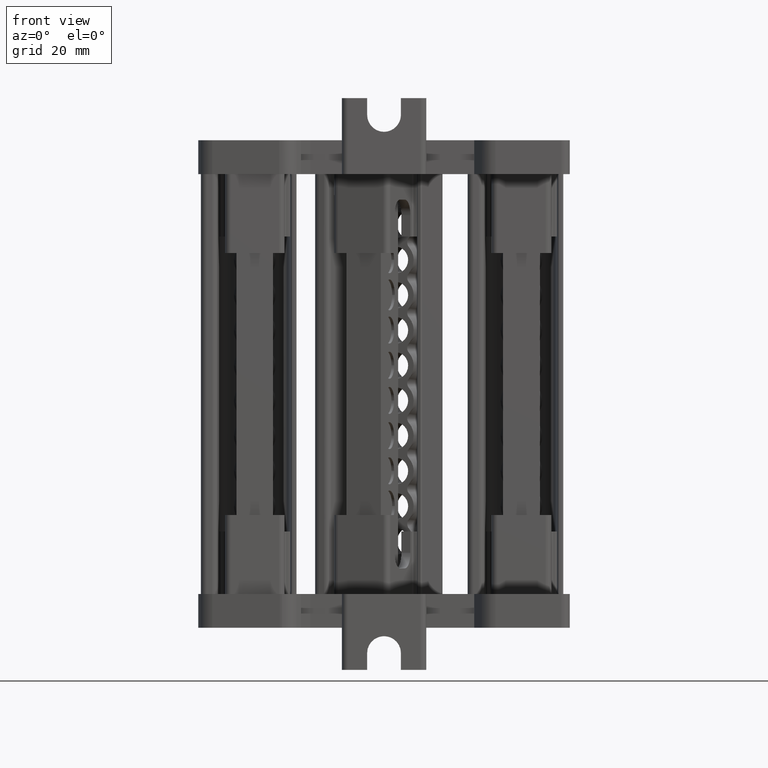
[diagram: clean part render]
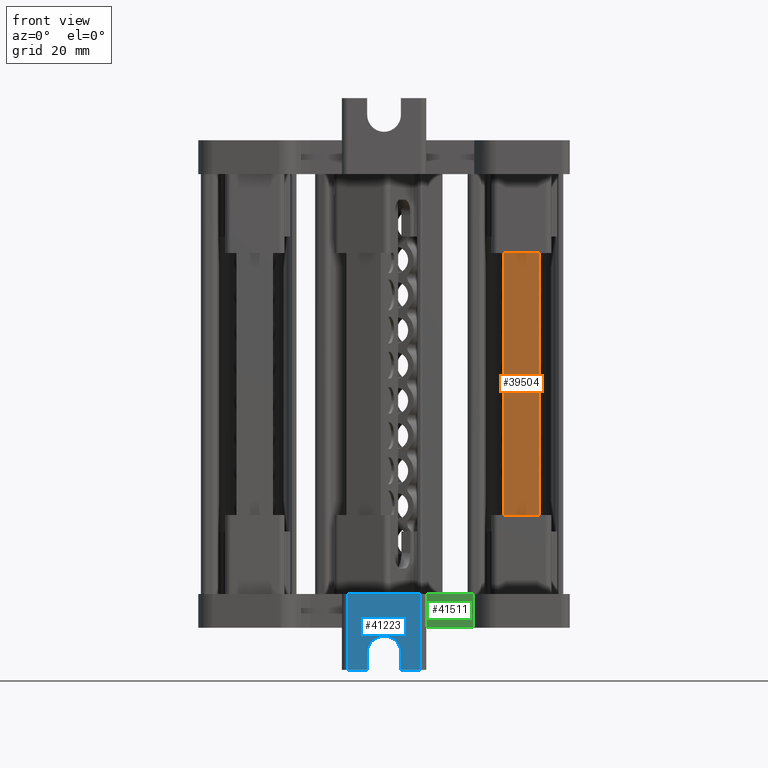
[diagram: same view with three faces highlighted in distinct colors, each labeled with its STEP entity id]
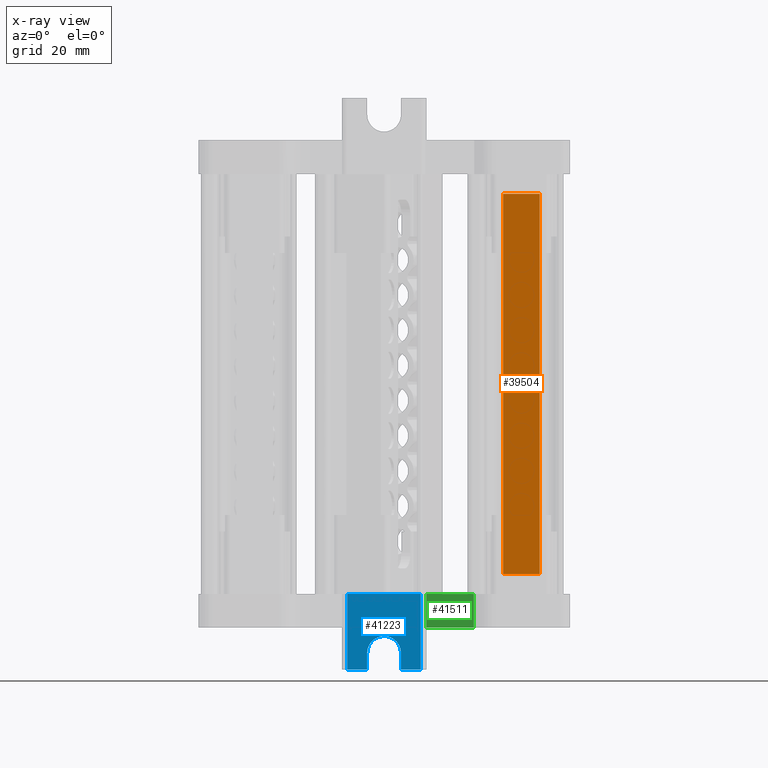
[diagram: x-ray of the same camera — body ghosted, the three highlighted faces saturated]
A machine part, front view with three faces highlighted in distinct colors.
The next image is the same camera in x-ray (body ghosted, the three faces saturated) — at least one of them is partly hidden behind the body in this view.
Their STEP definitions:

[orange] entity #39504 — the highlighted planar face has unit normal (0, 1, -0).
#4358 = PLANE ( 'NONE',  #5455 ) ;
#4363 = DIRECTION ( 'NONE',  ( -1.000000000000000000, 1.197504000946732500E-013, 0.0000000000000000000 ) ) ;
#4380 = DIRECTION ( 'NONE',  ( 1.197504000946732500E-013, 1.000000000000000000, -8.182587763210039800E-015 ) ) ;
#4383 = CARTESIAN_POINT ( 'NONE',  ( -276.7292477642366700, 208.4865885416695300, 29.24122990646404600 ) ) ;
#4399 = FACE_OUTER_BOUND ( 'NONE', #50822, .T. ) ;
#5455 = AXIS2_PLACEMENT_3D ( 'NONE', #4383, #4380, #4363 ) ;
#16775 = VERTEX_POINT ( 'NONE', #79411 ) ;
#16813 = VERTEX_POINT ( 'NONE', #79505 ) ;
#17326 = VERTEX_POINT ( 'NONE', #79720 ) ;
#17745 = VERTEX_POINT ( 'NONE', #79820 ) ;
#24283 = EDGE_CURVE ( 'NONE', #17326, #17745, #98885, .T. ) ;
#29691 = VECTOR ( 'NONE', #41949, 1000.000000000000000 ) ;
#29785 = VECTOR ( 'NONE', #42471, 1000.000000000000000 ) ;
#29800 = VECTOR ( 'NONE', #42134, 1000.000000000000000 ) ;
#39504 = ADVANCED_FACE ( 'NONE', ( #4399 ), #4358, .F. ) ;
#41590 = EDGE_CURVE ( 'NONE', #17326, #16813, #42013, .T. ) ;
#41602 = EDGE_CURVE ( 'NONE', #17745, #16775, #42125, .T. ) ;
#41646 = EDGE_CURVE ( 'NONE', #16775, #16813, #42506, .T. ) ;
#41949 = DIRECTION ( 'NONE',  ( -1.259341268657547500E-016, 1.508066207774747300E-029, -1.000000000000000000 ) ) ;
#41967 = CARTESIAN_POINT ( 'NONE',  ( -276.7292477642366200, 208.4865885416701000, 29.24122990646399600 ) ) ;
#42013 = LINE ( 'NONE', #41967, #29691 ) ;
#42125 = LINE ( 'NONE', #42127, #29800 ) ;
#42127 = CARTESIAN_POINT ( 'NONE',  ( -270.2292477642366700, 208.4865885416693300, 29.24122990646399600 ) ) ;
#42134 = DIRECTION ( 'NONE',  ( -1.259341268657547500E-016, 1.508066207774747300E-029, -1.000000000000000000 ) ) ;
#42471 = DIRECTION ( 'NONE',  ( -1.000000000000000000, 2.763709470186517000E-032, 3.469446951942104800E-018 ) ) ;
#42506 = LINE ( 'NONE', #42529, #29785 ) ;
#42529 = CARTESIAN_POINT ( 'NONE',  ( -270.4169902369251300, 208.4865885416687700, 29.24122990646639100 ) ) ;
#49115 = ORIENTED_EDGE ( 'NONE', *, *, #41646, .F. ) ;
#50822 = EDGE_LOOP ( 'NONE', ( #51359, #49115, #51394, #51443 ) ) ;
#51359 = ORIENTED_EDGE ( 'NONE', *, *, #41590, .T. ) ;
#51394 = ORIENTED_EDGE ( 'NONE', *, *, #41602, .F. ) ;
#51443 = ORIENTED_EDGE ( 'NONE', *, *, #24283, .F. ) ;
#73303 = VECTOR ( 'NONE', #98942, 1000.000000000000000 ) ;
#79411 = CARTESIAN_POINT ( 'NONE',  ( -270.2292477642359900, 208.4865885416689900, 29.24122990646639100 ) ) ;
#79505 = CARTESIAN_POINT ( 'NONE',  ( -276.7292477642366200, 208.4865885416692200, 29.24122990646639100 ) ) ;
#79720 = CARTESIAN_POINT ( 'NONE',  ( -276.7292477642366200, 208.4865885416701000, 96.78362721523151900 ) ) ;
#79820 = CARTESIAN_POINT ( 'NONE',  ( -270.2292477642366700, 208.4865885416693300, 96.78362721523151900 ) ) ;
#98885 = LINE ( 'NONE', #98910, #73303 ) ;
#98910 = CARTESIAN_POINT ( 'NONE',  ( -276.7292477642366700, 208.4865885416701000, 96.78362721523146200 ) ) ;
#98942 = DIRECTION ( 'NONE',  ( 1.000000000000000000, -1.197504000946732500E-013, -0.0000000000000000000 ) ) ;

[blue] entity #41223 — the highlighted planar face has unit normal (0, -1, -0).
#4898 = VECTOR ( 'NONE', #12810, 1000.000000000000000 ) ;
#4925 = VECTOR ( 'NONE', #13182, 1000.000000000000000 ) ;
#8344 = EDGE_LOOP ( 'NONE', ( #96451, #47595, #96458, #96431, #47252, #96428, #96418, #96454 ) ) ;
#12799 = LINE ( 'NONE', #12844, #4898 ) ;
#12810 = DIRECTION ( 'NONE',  ( -0.0000000000000000000, -6.891400851611630800E-015, 1.000000000000000000 ) ) ;
#12844 = CARTESIAN_POINT ( 'NONE',  ( -300.8933535342819700, 187.0684934825438900, -61.31907355829680000 ) ) ;
#13073 = CARTESIAN_POINT ( 'NONE',  ( -294.8928489085786900, 187.0684934825438900, -61.31907355829680000 ) ) ;
#13167 = LINE ( 'NONE', #13073, #4925 ) ;
#13182 = DIRECTION ( 'NONE',  ( 0.0000000000000000000, 6.891400851611630800E-015, -1.000000000000000000 ) ) ;
#13839 = VECTOR ( 'NONE', #16557, 1000.000000000000000 ) ;
#13979 = VECTOR ( 'NONE', #16761, 1000.000000000000000 ) ;
#14065 = VECTOR ( 'NONE', #16886, 1000.000000000000000 ) ;
#14146 = VECTOR ( 'NONE', #16869, 1000.000000000000000 ) ;
#14164 = VECTOR ( 'NONE', #16898, 1000.000000000000000 ) ;
#16557 = DIRECTION ( 'NONE',  ( -1.000000000000000000, 0.0000000000000000000, -0.0000000000000000000 ) ) ;
#16621 = CARTESIAN_POINT ( 'NONE',  ( -300.8933535342819700, 187.0684934825434000, 12.21179777871980800 ) ) ;
#16635 = LINE ( 'NONE', #16621, #13839 ) ;
#16757 = CARTESIAN_POINT ( 'NONE',  ( -304.3898549441998400, 187.0684934825439100, -61.31907355829680700 ) ) ;
#16761 = DIRECTION ( 'NONE',  ( -3.956299522033005100E-015, -6.891400851611630800E-015, 1.000000000000000000 ) ) ;
#16840 = LINE ( 'NONE', #16757, #13979 ) ;
#16846 = LINE ( 'NONE', #16888, #14146 ) ;
#16855 = CARTESIAN_POINT ( 'NONE',  ( -291.3963463213656800, 187.0684934825432900, 25.71293318655206100 ) ) ;
#16867 = LINE ( 'NONE', #16855, #14164 ) ;
#16869 = DIRECTION ( 'NONE',  ( 3.956299522033005100E-015, 6.891400851611630800E-015, -1.000000000000000000 ) ) ;
#16884 = LINE ( 'NONE', #16893, #14065 ) ;
#16886 = DIRECTION ( 'NONE',  ( -1.000000000000000000, 0.0000000000000000000, -0.0000000000000000000 ) ) ;
#16888 = CARTESIAN_POINT ( 'NONE',  ( -291.3963463213653400, 187.0684934825439100, -61.31907355829680700 ) ) ;
#16893 = CARTESIAN_POINT ( 'NONE',  ( -290.3962622170823200, 187.0684934825434000, 12.21179777871980800 ) ) ;
#16898 = DIRECTION ( 'NONE',  ( -1.000000000000000000, -2.944406934524380500E-029, -2.029108845607250600E-043 ) ) ;
#24517 = EDGE_CURVE ( 'NONE', #64437, #64448, #73681, .T. ) ;
#30394 = AXIS2_PLACEMENT_3D ( 'NONE', #33925, #33896, #33886 ) ;
#33834 = PLANE ( 'NONE',  #30394 ) ;
#33849 = FACE_OUTER_BOUND ( 'NONE', #8344, .T. ) ;
#33886 = DIRECTION ( 'NONE',  ( 0.0000000000000000000, 6.891400851611630800E-015, -1.000000000000000000 ) ) ;
#33896 = DIRECTION ( 'NONE',  ( 2.944406934524380500E-029, -1.000000000000000000, -6.891400851611630800E-015 ) ) ;
#33925 = CARTESIAN_POINT ( 'NONE',  ( -291.3963463213656800, 187.0684934825438900, -61.31907355829680000 ) ) ;
#40268 = EDGE_CURVE ( 'NONE', #64674, #64437, #12799, .T. ) ;
#40286 = EDGE_CURVE ( 'NONE', #64448, #64679, #13167, .T. ) ;
#40437 = EDGE_CURVE ( 'NONE', #64674, #64859, #16635, .T. ) ;
#40474 = EDGE_CURVE ( 'NONE', #64859, #64799, #16840, .T. ) ;
#40482 = EDGE_CURVE ( 'NONE', #64791, #64679, #16884, .T. ) ;
#40483 = EDGE_CURVE ( 'NONE', #64760, #64799, #16867, .T. ) ;
#40487 = EDGE_CURVE ( 'NONE', #64760, #64791, #16846, .T. ) ;
#41223 = ADVANCED_FACE ( 'NONE', ( #33849 ), #33834, .T. ) ;
#47252 = ORIENTED_EDGE ( 'NONE', *, *, #40487, .F. ) ;
#47595 = ORIENTED_EDGE ( 'NONE', *, *, #24517, .T. ) ;
#64437 = VERTEX_POINT ( 'NONE', #110407 ) ;
#64448 = VERTEX_POINT ( 'NONE', #110394 ) ;
#64674 = VERTEX_POINT ( 'NONE', #110592 ) ;
#64679 = VERTEX_POINT ( 'NONE', #110585 ) ;
#64760 = VERTEX_POINT ( 'NONE', #110629 ) ;
#64791 = VERTEX_POINT ( 'NONE', #110627 ) ;
#64799 = VERTEX_POINT ( 'NONE', #110675 ) ;
#64859 = VERTEX_POINT ( 'NONE', #110659 ) ;
#73651 = AXIS2_PLACEMENT_3D ( 'NONE', #100955, #100986, #100974 ) ;
#73681 = CIRCLE ( 'NONE', #73651, 3.000252312851639000 ) ;
#96418 = ORIENTED_EDGE ( 'NONE', *, *, #40474, .F. ) ;
#96428 = ORIENTED_EDGE ( 'NONE', *, *, #40483, .T. ) ;
#96431 = ORIENTED_EDGE ( 'NONE', *, *, #40482, .F. ) ;
#96451 = ORIENTED_EDGE ( 'NONE', *, *, #40268, .T. ) ;
#96454 = ORIENTED_EDGE ( 'NONE', *, *, #40437, .F. ) ;
#96458 = ORIENTED_EDGE ( 'NONE', *, *, #40286, .T. ) ;
#100955 = CARTESIAN_POINT ( 'NONE',  ( -297.8931012214303600, 187.0684934825434000, 15.21205009157163200 ) ) ;
#100974 = DIRECTION ( 'NONE',  ( 0.0000000000000000000, 9.251080483043832000E-015, -1.000000000000000000 ) ) ;
#100986 = DIRECTION ( 'NONE',  ( -2.944406934524380500E-029, 1.000000000000000000, 6.891400851611630800E-015 ) ) ;
#110394 = CARTESIAN_POINT ( 'NONE',  ( -294.8928489085786900, 187.0684934825434000, 15.21205009157154600 ) ) ;
#110407 = CARTESIAN_POINT ( 'NONE',  ( -300.8933535342819700, 187.0684934825434000, 15.21205009157164400 ) ) ;
#110585 = CARTESIAN_POINT ( 'NONE',  ( -294.8928489085786900, 187.0684934825434000, 12.21179777871981600 ) ) ;
#110592 = CARTESIAN_POINT ( 'NONE',  ( -300.8933535342819700, 187.0684934825434000, 12.21179777871981600 ) ) ;
#110627 = CARTESIAN_POINT ( 'NONE',  ( -291.3963463213658000, 187.0684934825434000, 12.21179777871983200 ) ) ;
#110629 = CARTESIAN_POINT ( 'NONE',  ( -291.3963463213658500, 187.0684934825432900, 25.71293318655206800 ) ) ;
#110659 = CARTESIAN_POINT ( 'NONE',  ( -304.3898549442001200, 187.0684934825434000, 12.21179777871982000 ) ) ;
#110675 = CARTESIAN_POINT ( 'NONE',  ( -304.3898549442001800, 187.0684934825432900, 25.71293318655203900 ) ) ;

[green] entity #41511 — the highlighted planar face has unit normal (0, -1, -0).
#9791 = EDGE_LOOP ( 'NONE', ( #46250, #46103, #46234, #46198 ) ) ;
#12427 = VECTOR ( 'NONE', #20025, 1000.000000000000000 ) ;
#12648 = VECTOR ( 'NONE', #21164, 1000.000000000000000 ) ;
#12735 = VECTOR ( 'NONE', #22106, 1000.000000000000000 ) ;
#12832 = VECTOR ( 'NONE', #22504, 1000.000000000000000 ) ;
#20025 = DIRECTION ( 'NONE',  ( -0.0000000000000000000, -6.891400851611630800E-015, 1.000000000000000000 ) ) ;
#20037 = LINE ( 'NONE', #20066, #12427 ) ;
#20066 = CARTESIAN_POINT ( 'NONE',  ( -281.9340844285987400, 192.1430531581711400, -61.31907355829680000 ) ) ;
#21012 = LINE ( 'NONE', #21096, #12648 ) ;
#21096 = CARTESIAN_POINT ( 'NONE',  ( -281.9340844285987400, 192.1430531581705500, 25.71293318655212800 ) ) ;
#21164 = DIRECTION ( 'NONE',  ( -1.000000000000000000, -2.257871461625990100E-029, -1.555989731347894500E-043 ) ) ;
#22104 = CARTESIAN_POINT ( 'NONE',  ( -290.3962622170823200, 192.1430531581711400, -61.31907355829680000 ) ) ;
#22106 = DIRECTION ( 'NONE',  ( 0.0000000000000000000, 6.891400851611630800E-015, -1.000000000000000000 ) ) ;
#22112 = LINE ( 'NONE', #22104, #12735 ) ;
#22494 = CARTESIAN_POINT ( 'NONE',  ( -281.9340844285987400, 192.1430531581706000, 19.71242856084912300 ) ) ;
#22499 = LINE ( 'NONE', #22494, #12832 ) ;
#22504 = DIRECTION ( 'NONE',  ( 1.000000000000000000, 2.257871461625990100E-029, 1.555989731347894500E-043 ) ) ;
#29481 = AXIS2_PLACEMENT_3D ( 'NONE', #35983, #35910, #35913 ) ;
#35910 = DIRECTION ( 'NONE',  ( 2.257871461625990100E-029, -1.000000000000000000, -6.891400851611630800E-015 ) ) ;
#35913 = DIRECTION ( 'NONE',  ( 0.0000000000000000000, 6.891400851611630800E-015, -1.000000000000000000 ) ) ;
#35940 = FACE_OUTER_BOUND ( 'NONE', #9791, .T. ) ;
#35982 = PLANE ( 'NONE',  #29481 ) ;
#35983 = CARTESIAN_POINT ( 'NONE',  ( -281.9340844285987400, 192.1430531581711400, -61.31907355829680000 ) ) ;
#40749 = EDGE_CURVE ( 'NONE', #66569, #66579, #20037, .T. ) ;
#40826 = EDGE_CURVE ( 'NONE', #66579, #66566, #21012, .T. ) ;
#40919 = EDGE_CURVE ( 'NONE', #66566, #66584, #22112, .T. ) ;
#40965 = EDGE_CURVE ( 'NONE', #66584, #66569, #22499, .T. ) ;
#41511 = ADVANCED_FACE ( 'NONE', ( #35940 ), #35982, .T. ) ;
#46103 = ORIENTED_EDGE ( 'NONE', *, *, #40826, .T. ) ;
#46198 = ORIENTED_EDGE ( 'NONE', *, *, #40965, .T. ) ;
#46234 = ORIENTED_EDGE ( 'NONE', *, *, #40919, .T. ) ;
#46250 = ORIENTED_EDGE ( 'NONE', *, *, #40749, .T. ) ;
#66566 = VERTEX_POINT ( 'NONE', #110893 ) ;
#66569 = VERTEX_POINT ( 'NONE', #110881 ) ;
#66579 = VERTEX_POINT ( 'NONE', #110921 ) ;
#66584 = VERTEX_POINT ( 'NONE', #110887 ) ;
#110881 = CARTESIAN_POINT ( 'NONE',  ( -281.9340844285989100, 192.1430531581706000, 19.71242856084908400 ) ) ;
#110887 = CARTESIAN_POINT ( 'NONE',  ( -290.3962622170822700, 192.1430531581706000, 19.71242856084912300 ) ) ;
#110893 = CARTESIAN_POINT ( 'NONE',  ( -290.3962622170822700, 192.1430531581705500, 25.71293318655212400 ) ) ;
#110921 = CARTESIAN_POINT ( 'NONE',  ( -281.9340844285989100, 192.1430531581705500, 25.71293318655215300 ) ) ;